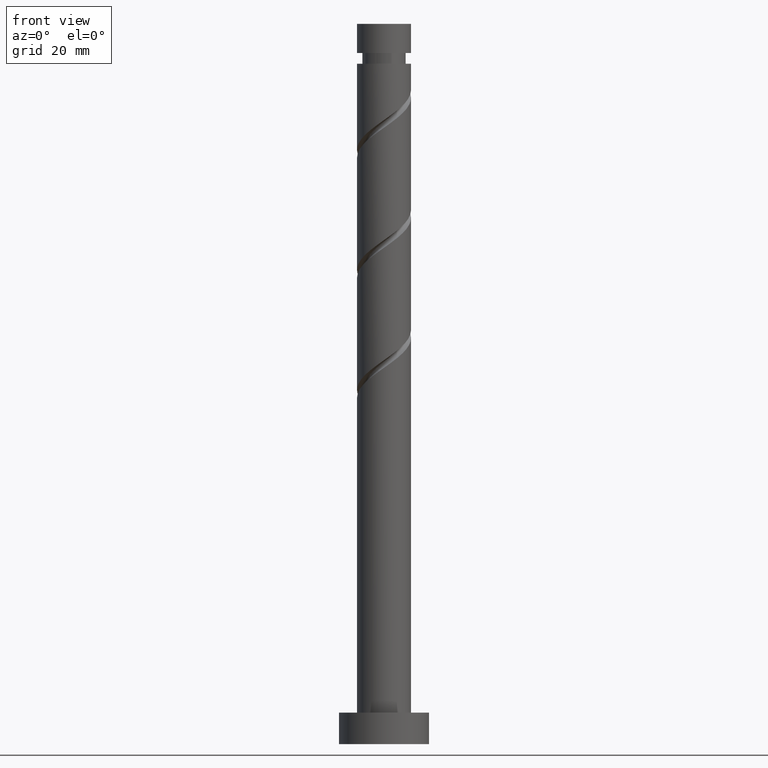
[diagram: clean part render]
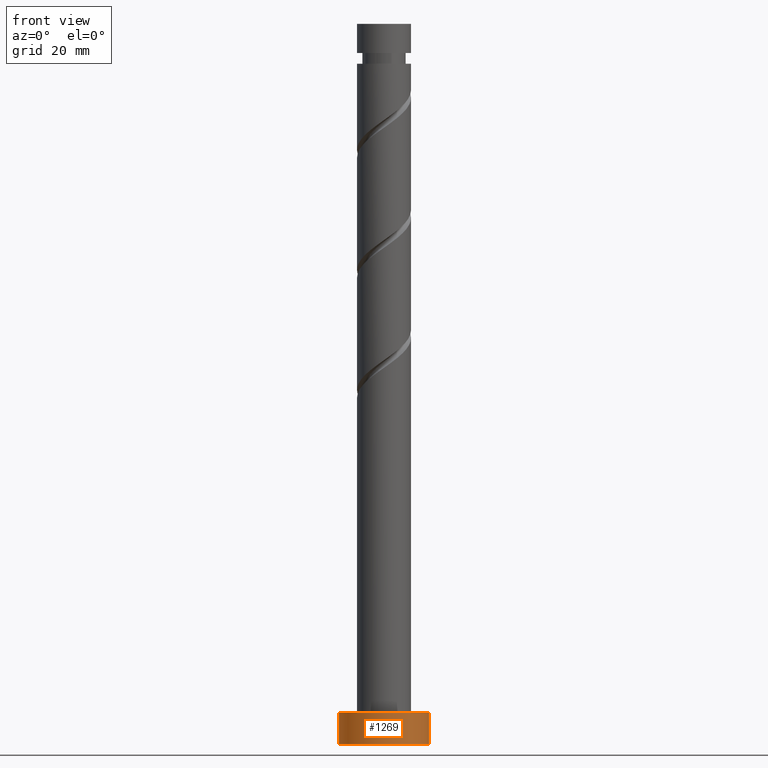
[diagram: same view with one face highlighted and labeled with its STEP entity id]
A machine part, front view. The second image highlights one B-rep face of the part: STEP entity #1269.
In plain terms, the highlighted cylindrical surface (partial cylindrical patch) has radius 10 mm, axis along (-0, -0, -1).
Its self-contained STEP definition (entity closure, byte-faithful):
#1 = DIRECTION ( 'NONE',  ( 1.000000000000000000, 0.000000000000000000, 0.000000000000000000 ) ) ;
#8 = EDGE_CURVE ( 'NONE', #878, #585, #893, .T. ) ;
#122 = FACE_OUTER_BOUND ( 'NONE', #551, .T. ) ;
#196 = CARTESIAN_POINT ( 'NONE',  ( -10.00000000000000000, 0.000000000000000000, 0.000000000000000000 ) ) ;
#202 = VECTOR ( 'NONE', #1052, 1000.000000000000000 ) ;
#321 = CYLINDRICAL_SURFACE ( 'NONE', #1004, 10.00000000000000000 ) ;
#388 = CARTESIAN_POINT ( 'NONE',  ( 10.00000000000000000, 1.224646799147353256E-15, 0.000000000000000000 ) ) ;
#467 = EDGE_CURVE ( 'NONE', #704, #540, #1329, .T. ) ;
#478 = DIRECTION ( 'NONE',  ( -1.000000000000000000, 0.000000000000000000, 0.000000000000000000 ) ) ;
#499 = ORIENTED_EDGE ( 'NONE', *, *, #467, .F. ) ;
#508 = CARTESIAN_POINT ( 'NONE',  ( 10.00000000000000000, 1.224646799147353256E-15, 7.000000000000000000 ) ) ;
#540 = VERTEX_POINT ( 'NONE', #508 ) ;
#551 = EDGE_LOOP ( 'NONE', ( #1597, #499, #697, #1245 ) ) ;
#585 = VERTEX_POINT ( 'NONE', #388 ) ;
#631 = CARTESIAN_POINT ( 'NONE',  ( 0.000000000000000000, 0.000000000000000000, 0.000000000000000000 ) ) ;
#697 = ORIENTED_EDGE ( 'NONE', *, *, #1444, .T. ) ;
#704 = VERTEX_POINT ( 'NONE', #1181 ) ;
#771 = CARTESIAN_POINT ( 'NONE',  ( 10.00000000000000000, 1.224646799147353256E-15, 7.000000000000000000 ) ) ;
#781 = CARTESIAN_POINT ( 'NONE',  ( 0.000000000000000000, 0.000000000000000000, 7.000000000000000000 ) ) ;
#878 = VERTEX_POINT ( 'NONE', #196 ) ;
#893 = CIRCLE ( 'NONE', #917, 10.00000000000000000 ) ;
#897 = DIRECTION ( 'NONE',  ( 1.000000000000000000, 0.000000000000000000, 0.000000000000000000 ) ) ;
#899 = LINE ( 'NONE', #771, #1220 ) ;
#916 = CARTESIAN_POINT ( 'NONE',  ( -10.00000000000000000, 0.000000000000000000, 7.000000000000000000 ) ) ;
#917 = AXIS2_PLACEMENT_3D ( 'NONE', #631, #1152, #897 ) ;
#951 = CARTESIAN_POINT ( 'NONE',  ( 0.000000000000000000, 0.000000000000000000, 7.000000000000000000 ) ) ;
#993 = EDGE_CURVE ( 'NONE', #540, #585, #899, .T. ) ;
#1004 = AXIS2_PLACEMENT_3D ( 'NONE', #951, #1652, #478 ) ;
#1052 = DIRECTION ( 'NONE',  ( -0.000000000000000000, -0.000000000000000000, -1.000000000000000000 ) ) ;
#1152 = DIRECTION ( 'NONE',  ( 0.000000000000000000, 0.000000000000000000, 1.000000000000000000 ) ) ;
#1156 = DIRECTION ( 'NONE',  ( 0.000000000000000000, 0.000000000000000000, 1.000000000000000000 ) ) ;
#1181 = CARTESIAN_POINT ( 'NONE',  ( -10.00000000000000000, 0.000000000000000000, 7.000000000000000000 ) ) ;
#1220 = VECTOR ( 'NONE', #1291, 1000.000000000000000 ) ;
#1245 = ORIENTED_EDGE ( 'NONE', *, *, #8, .T. ) ;
#1269 = ADVANCED_FACE ( 'NONE', ( #122 ), #321, .T. ) ;
#1291 = DIRECTION ( 'NONE',  ( -0.000000000000000000, -0.000000000000000000, -1.000000000000000000 ) ) ;
#1329 = CIRCLE ( 'NONE', #1589, 10.00000000000000000 ) ;
#1444 = EDGE_CURVE ( 'NONE', #704, #878, #1659, .T. ) ;
#1589 = AXIS2_PLACEMENT_3D ( 'NONE', #781, #1156, #1 ) ;
#1597 = ORIENTED_EDGE ( 'NONE', *, *, #993, .F. ) ;
#1652 = DIRECTION ( 'NONE',  ( -0.000000000000000000, -0.000000000000000000, -1.000000000000000000 ) ) ;
#1659 = LINE ( 'NONE', #916, #202 ) ;